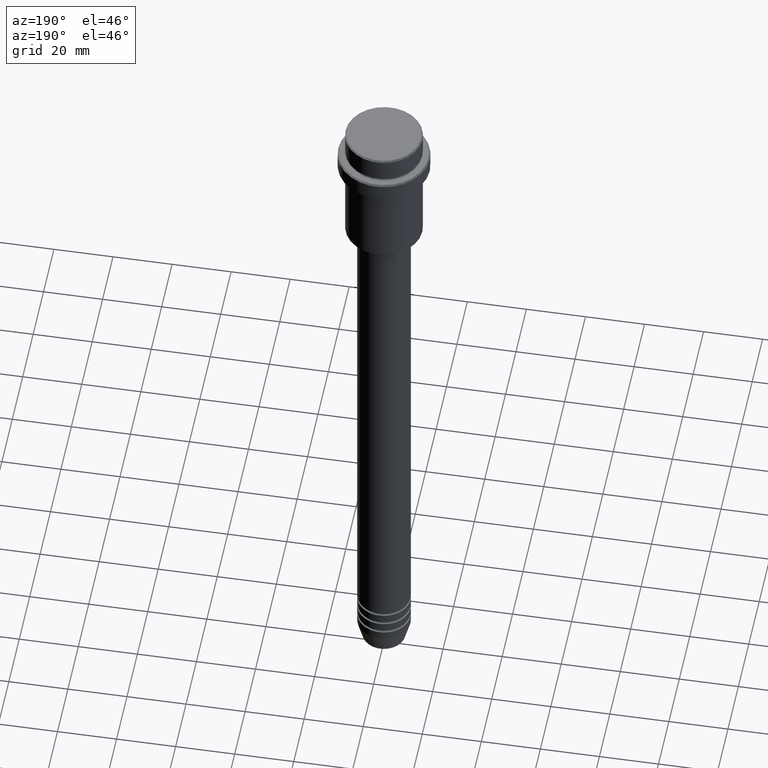
[diagram: clean part render]
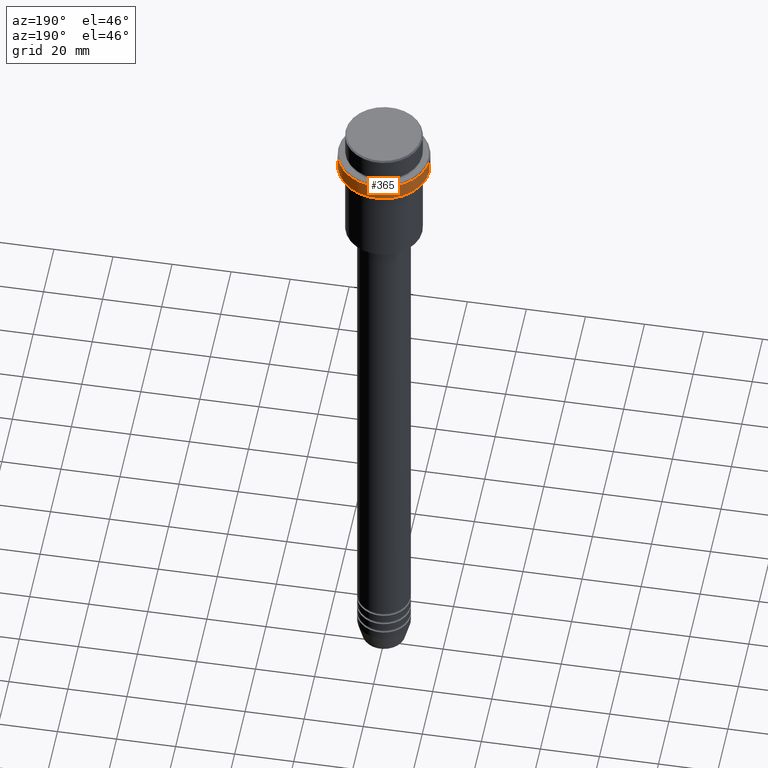
[diagram: same view with one face highlighted and labeled with its STEP entity id]
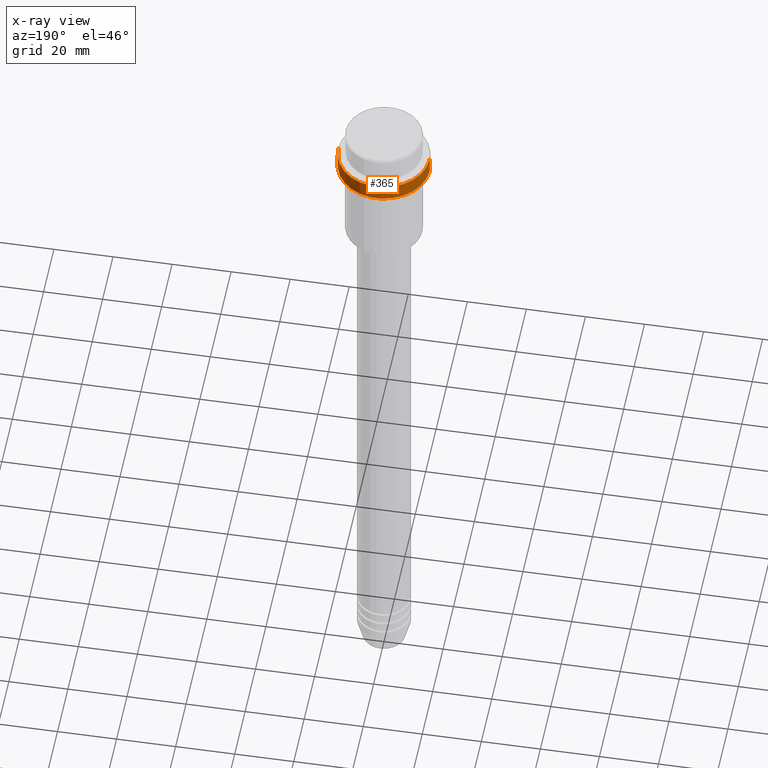
[diagram: x-ray of the same camera — body ghosted, the highlighted face saturated]
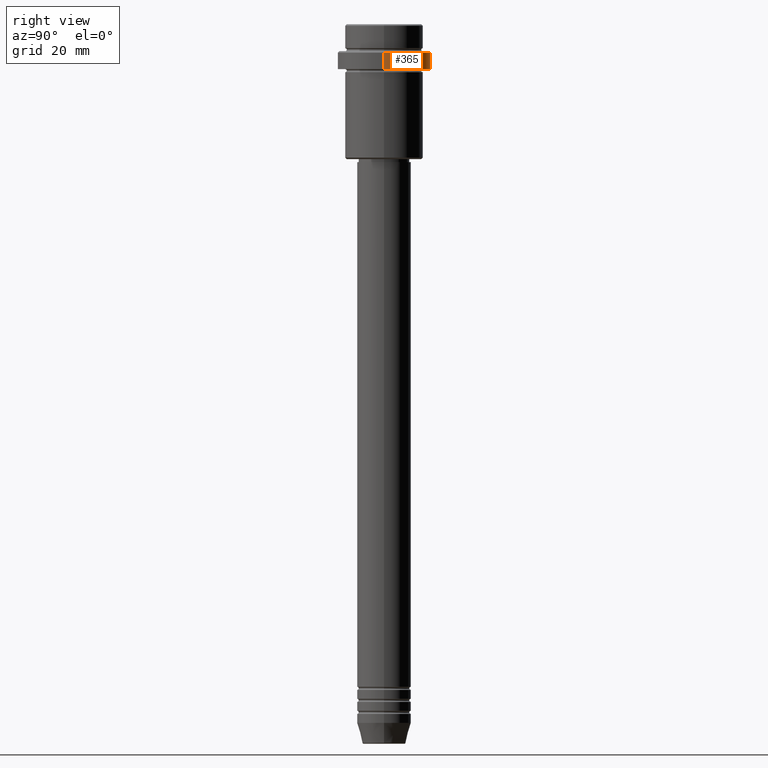
[diagram: same view with one face highlighted and labeled with its STEP entity id]
A machine part, auxiliary view. The second image highlights one B-rep face of the part: STEP entity #365.
The next image is the same camera in x-ray: the body ghosted, the highlighted face saturated — about 0% of this face is hidden behind the body in this view.
A second angle (right view) of the same face is appended — the face is thin or edge-on in the first view.
In plain terms, the highlighted cylindrical surface (partial cylindrical patch) has radius 15.5 mm, axis along (-0, -0, 1).
Its self-contained STEP definition (entity closure, byte-faithful):
#53 = AXIS2_PLACEMENT_3D ( 'NONE', #843, #293, #622 ) ;
#73 = CYLINDRICAL_SURFACE ( 'NONE', #220, 15.50000000000000000 ) ;
#112 = CARTESIAN_POINT ( 'NONE',  ( -15.50000000000000000, 1.898202538678397557E-15, 0.000000000000000000 ) ) ;
#122 = CARTESIAN_POINT ( 'NONE',  ( 0.000000000000000000, 0.000000000000000000, -15.00000000000000178 ) ) ;
#141 = CARTESIAN_POINT ( 'NONE',  ( 15.50000000000000000, 0.000000000000000000, -9.500000000000014211 ) ) ;
#192 = VECTOR ( 'NONE', #294, 1000.000000000000000 ) ;
#201 = FACE_OUTER_BOUND ( 'NONE', #1121, .T. ) ;
#203 = EDGE_CURVE ( 'NONE', #1066, #1058, #499, .T. ) ;
#220 = AXIS2_PLACEMENT_3D ( 'NONE', #309, #1082, #1070 ) ;
#293 = DIRECTION ( 'NONE',  ( 0.000000000000000000, 0.000000000000000000, -1.000000000000000000 ) ) ;
#294 = DIRECTION ( 'NONE',  ( -0.000000000000000000, -0.000000000000000000, 1.000000000000000000 ) ) ;
#309 = CARTESIAN_POINT ( 'NONE',  ( 0.000000000000000000, 0.000000000000000000, 0.000000000000000000 ) ) ;
#365 = ADVANCED_FACE ( 'NONE', ( #201 ), #73, .T. ) ;
#459 = VERTEX_POINT ( 'NONE', #973 ) ;
#496 = ORIENTED_EDGE ( 'NONE', *, *, #848, .T. ) ;
#499 = LINE ( 'NONE', #1145, #192 ) ;
#518 = AXIS2_PLACEMENT_3D ( 'NONE', #122, #1401, #1317 ) ;
#551 = DIRECTION ( 'NONE',  ( -0.000000000000000000, -0.000000000000000000, 1.000000000000000000 ) ) ;
#585 = CIRCLE ( 'NONE', #53, 15.50000000000000000 ) ;
#620 = EDGE_CURVE ( 'NONE', #459, #1400, #1319, .T. ) ;
#622 = DIRECTION ( 'NONE',  ( 1.000000000000000000, 0.000000000000000000, 0.000000000000000000 ) ) ;
#655 = EDGE_CURVE ( 'NONE', #1400, #1058, #585, .T. ) ;
#682 = CARTESIAN_POINT ( 'NONE',  ( -15.50000000000000000, 1.898202538678397557E-15, -9.500000000000014211 ) ) ;
#698 = VECTOR ( 'NONE', #551, 1000.000000000000000 ) ;
#816 = ORIENTED_EDGE ( 'NONE', *, *, #655, .T. ) ;
#843 = CARTESIAN_POINT ( 'NONE',  ( 0.000000000000000000, 0.000000000000000000, -9.500000000000014211 ) ) ;
#848 = EDGE_CURVE ( 'NONE', #1066, #459, #1382, .T. ) ;
#893 = ORIENTED_EDGE ( 'NONE', *, *, #620, .T. ) ;
#965 = ORIENTED_EDGE ( 'NONE', *, *, #203, .F. ) ;
#973 = CARTESIAN_POINT ( 'NONE',  ( -15.50000000000000000, 1.898202538678397557E-15, -15.00000000000000178 ) ) ;
#1058 = VERTEX_POINT ( 'NONE', #141 ) ;
#1066 = VERTEX_POINT ( 'NONE', #1162 ) ;
#1070 = DIRECTION ( 'NONE',  ( 1.000000000000000000, 0.000000000000000000, 0.000000000000000000 ) ) ;
#1082 = DIRECTION ( 'NONE',  ( -0.000000000000000000, -0.000000000000000000, 1.000000000000000000 ) ) ;
#1121 = EDGE_LOOP ( 'NONE', ( #496, #893, #816, #965 ) ) ;
#1145 = CARTESIAN_POINT ( 'NONE',  ( 15.50000000000000000, 0.000000000000000000, 0.000000000000000000 ) ) ;
#1162 = CARTESIAN_POINT ( 'NONE',  ( 15.50000000000000000, 0.000000000000000000, -15.00000000000000178 ) ) ;
#1317 = DIRECTION ( 'NONE',  ( 1.000000000000000000, 0.000000000000000000, 0.000000000000000000 ) ) ;
#1319 = LINE ( 'NONE', #112, #698 ) ;
#1382 = CIRCLE ( 'NONE', #518, 15.50000000000000000 ) ;
#1400 = VERTEX_POINT ( 'NONE', #682 ) ;
#1401 = DIRECTION ( 'NONE',  ( -0.000000000000000000, -0.000000000000000000, 1.000000000000000000 ) ) ;